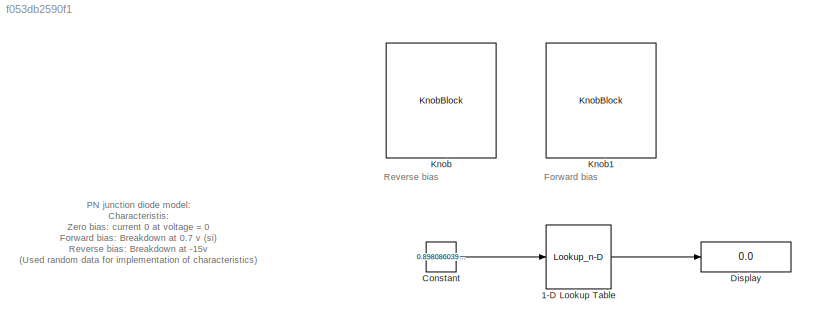
MODEL slx_f053db2590f1
KIND model
CONFIG AbsTol = auto
CONFIG EnableMultiTasking = off
CONFIG FixedStep = auto
CONFIG MaxStep = auto
CONFIG MinStep = auto
CONFIG PostLoadFcn = current_in_mA=[-20,-19,-18,-17,-16,-15,-14,-13,-12,-11,-10,-9,-8,-7,-6,-5,-4,-3,-2,-1,0,0.1,0.2,0.3,0.4,0.5,0.6,0.7,0.8,0.9,1];\nvoltage_in_volts=[0.6,0.5,0.4,0.3,0.2,0.1,0.09,0.08,0.07,0.06,0.05,0.04,0.03,0.02,0.01,0.01,0.005,0.004,0.002,0.001,0,0.01,0.02,0.3,0.4,0.5,0.55,1,3,5,9];
CONFIG RelTol = 1e-3
CONFIG SampleTimeConstraint = Unconstrained
CONFIG SolverName = VariableStepDiscrete
CONFIG StartTime = 0.0
CONFIG StopTime = 10.0
BLOCK [Lookup_n-D] 1-D Lookup Table
  BreakpointsForDimension1 = current_in_mA
  InputPortMap = u0
  InternalRulePriority = Speed
  NumberOfTableDimensions = 1
  Ports = [1, 1]
  RndMeth = Simplest
  Table = voltage_in_volts
BLOCK [Constant] Constant
  Value = 0.8980860392252604
BLOCK [Display] Display
  Decimation = 1
  Ports = [1]
BLOCK [KnobBlock] Knob
  ScaleMax = 0
  ScaleMin = -20
BLOCK [KnobBlock] Knob1
  ScaleMax = 1
ANNOTATION (root): PN junction diode model: Characteristis: Zero bias: current 0 at voltage = 0 Forward bias: Breakdown at 0.7 v (si) Reverse bias: Breakdown at -15v (Used random data for implementation of characteristics)
ANNOTATION (root): Forward bias
ANNOTATION (root): Reverse bias
LINE 1-D Lookup Table:1 -> Display:1
LINE Constant:1 -> 1-D Lookup Table:1
